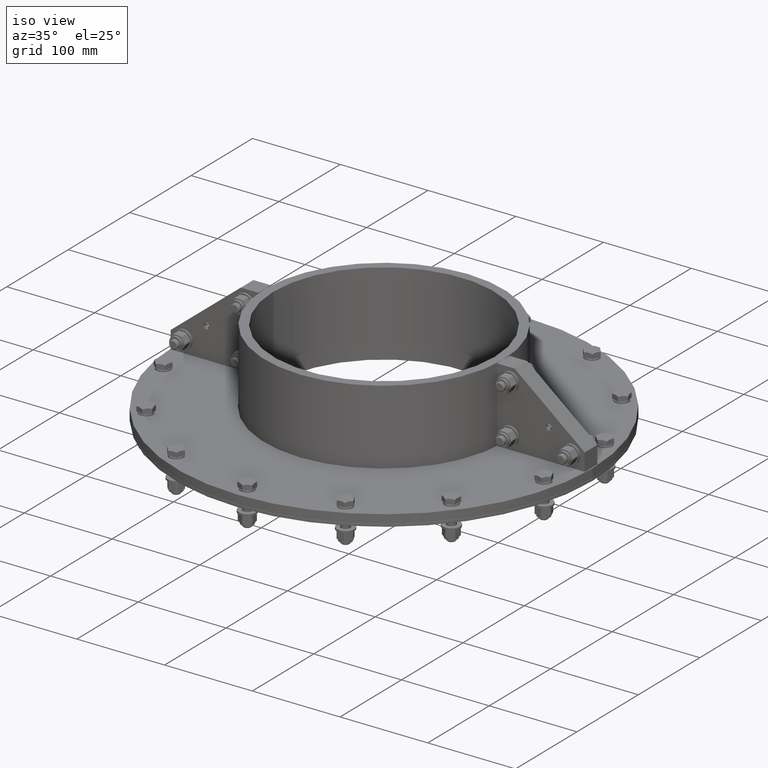
[diagram: clean part render]
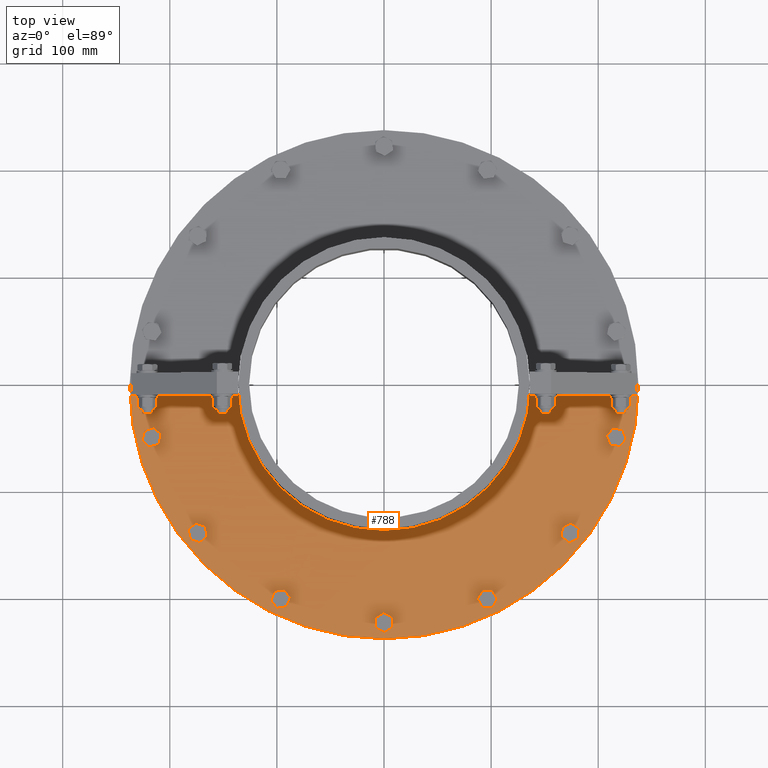
[diagram: tour spotlight — one face highlighted and labeled with its STEP entity id]
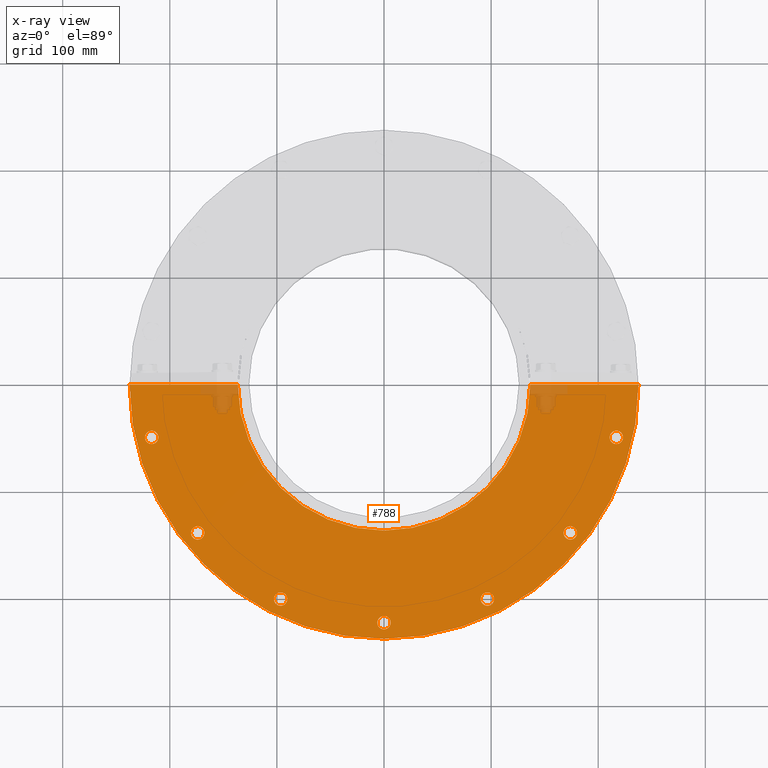
[diagram: x-ray of the same camera — body ghosted, this tour face saturated]
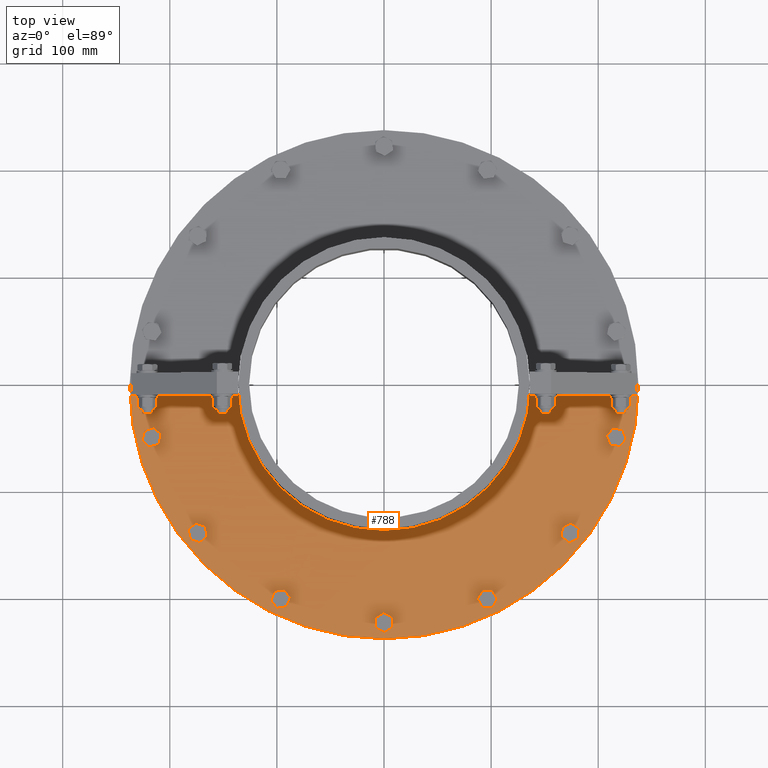
[diagram: tour spotlight — one face highlighted and labeled with its STEP entity id]
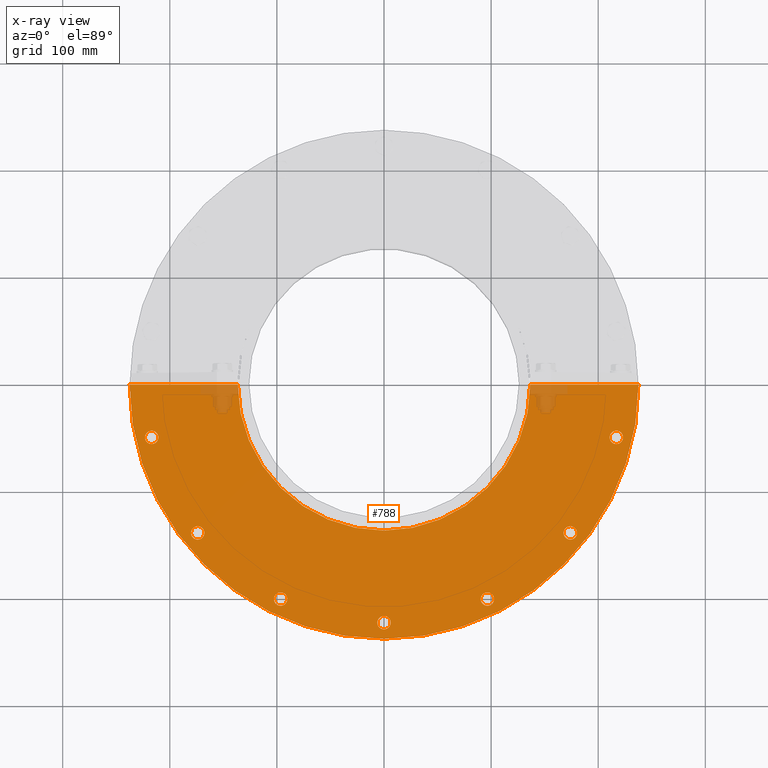
[diagram: x-ray of the same camera — body ghosted, this tour face saturated]
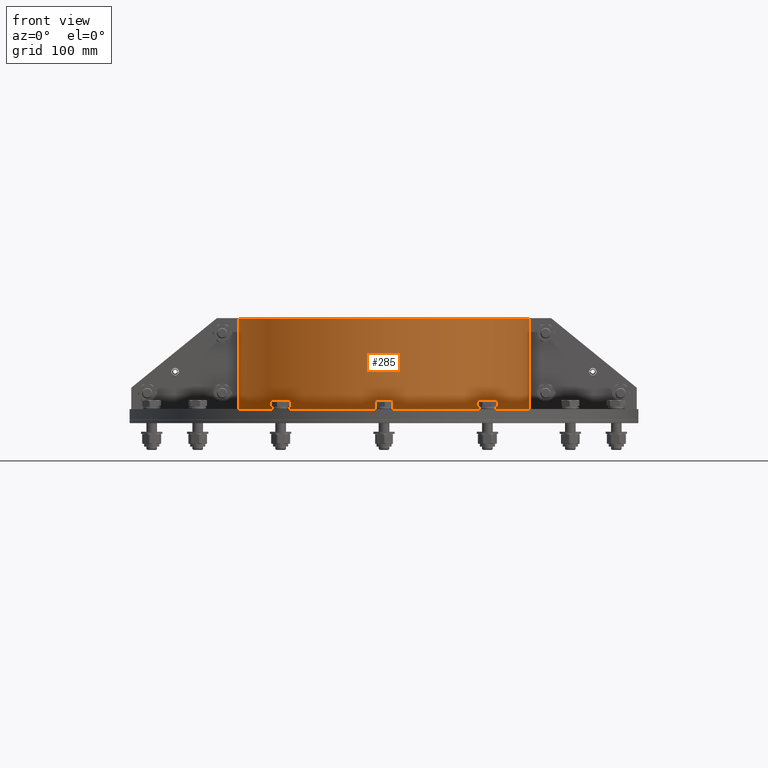
[diagram: tour spotlight — one face highlighted and labeled with its STEP entity id]
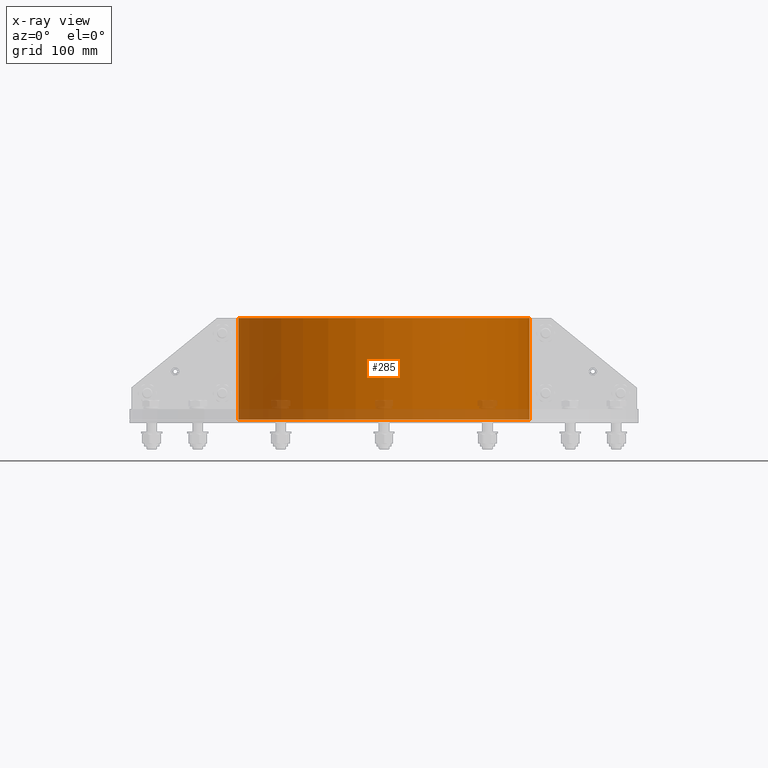
[diagram: x-ray of the same camera — body ghosted, this tour face saturated]
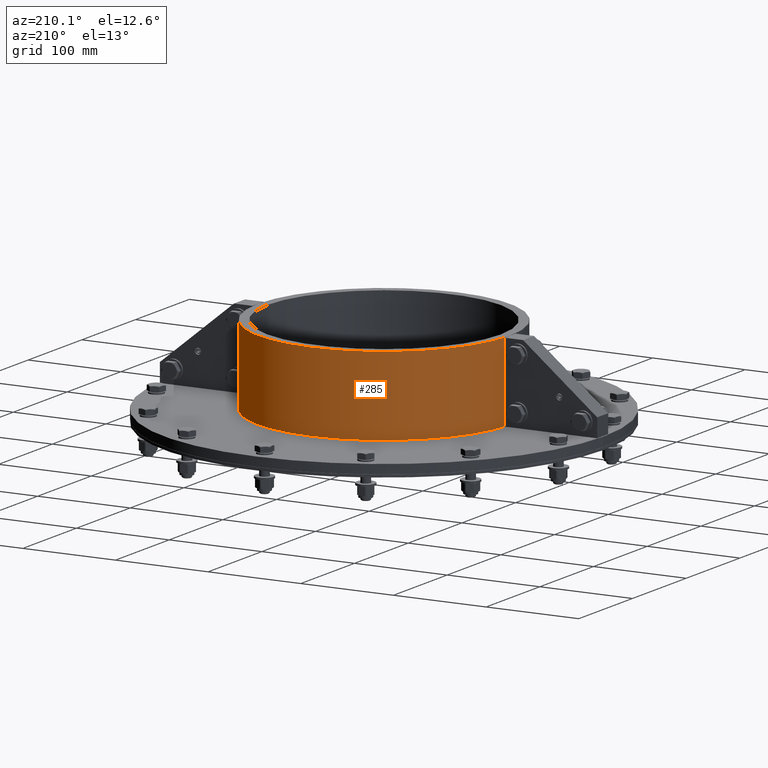
[diagram: tour spotlight — one face highlighted and labeled with its STEP entity id]
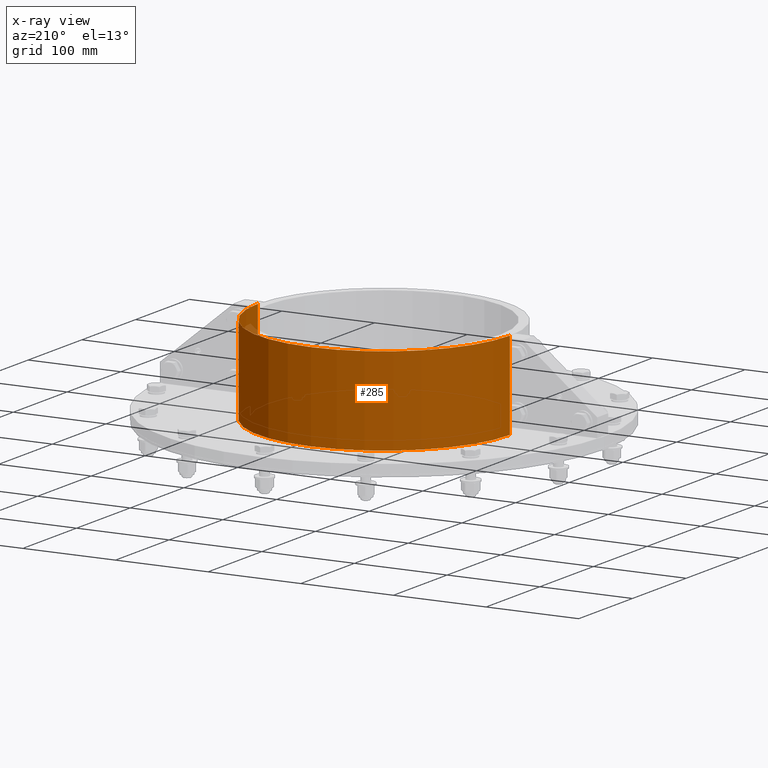
[diagram: x-ray of the same camera — body ghosted, this tour face saturated]
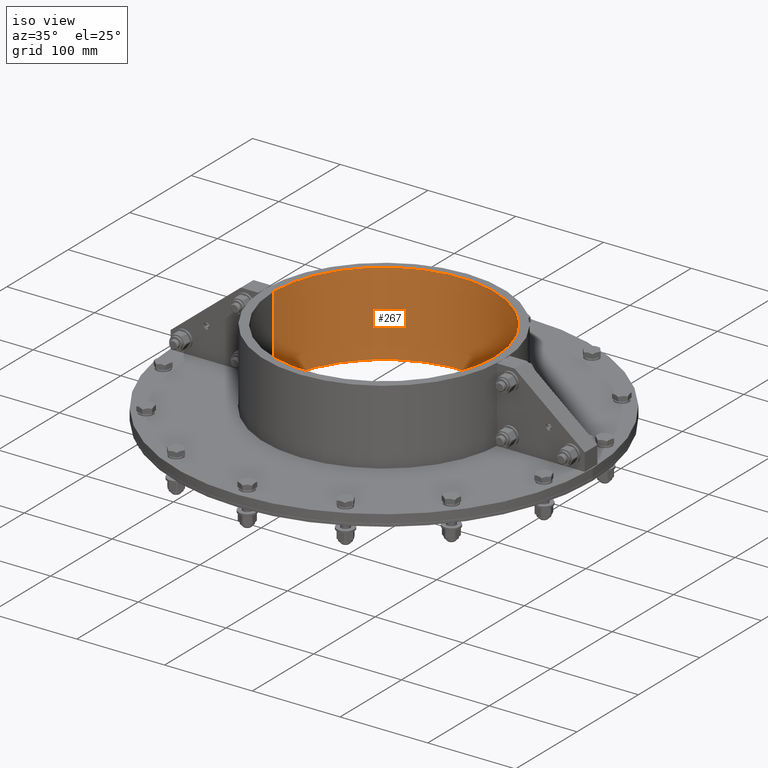
[diagram: tour spotlight — one face highlighted and labeled with its STEP entity id]
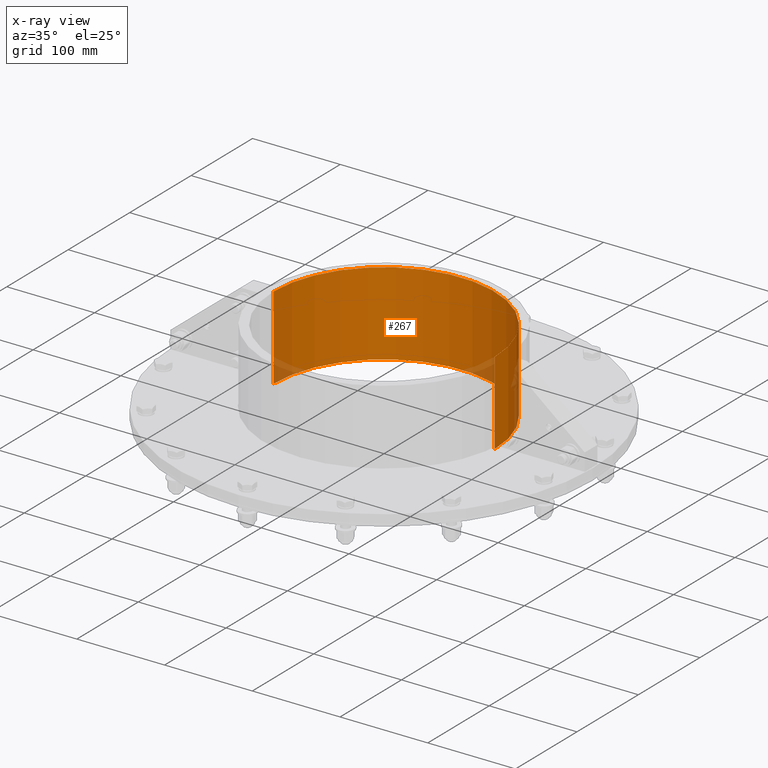
[diagram: x-ray of the same camera — body ghosted, this tour face saturated]
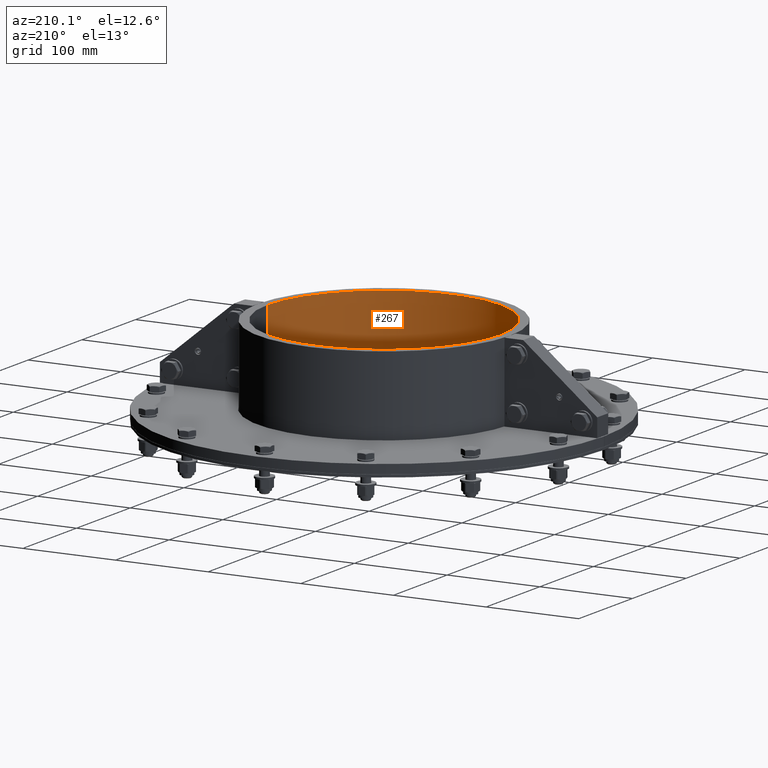
[diagram: tour spotlight — one face highlighted and labeled with its STEP entity id]
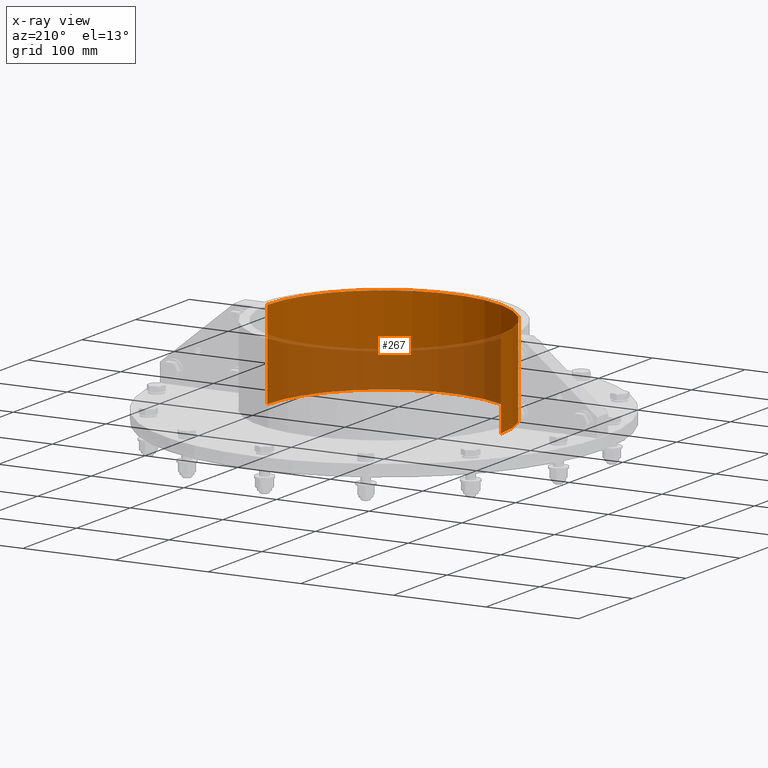
[diagram: x-ray of the same camera — body ghosted, this tour face saturated]
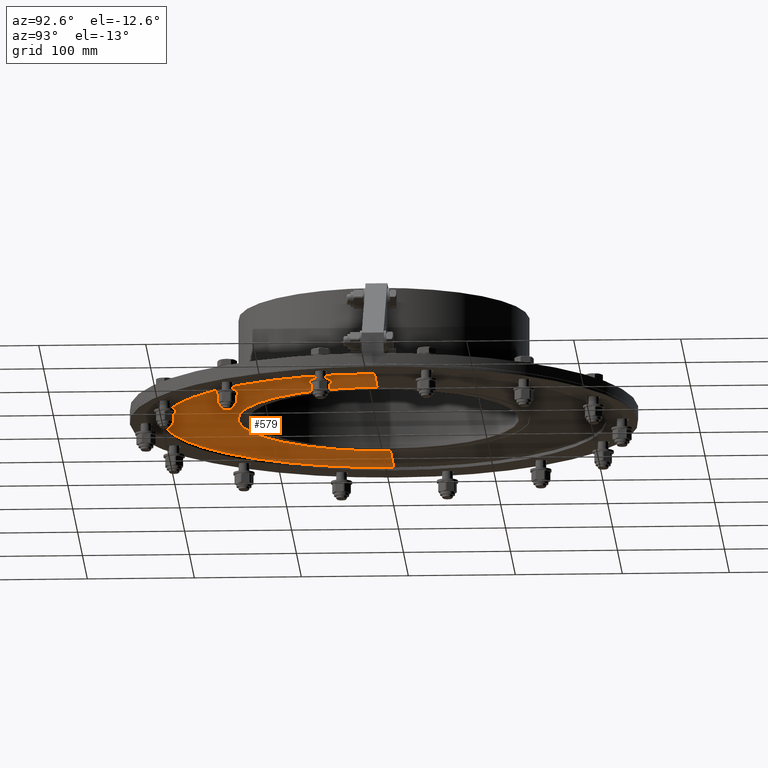
[diagram: tour spotlight — one face highlighted and labeled with its STEP entity id]
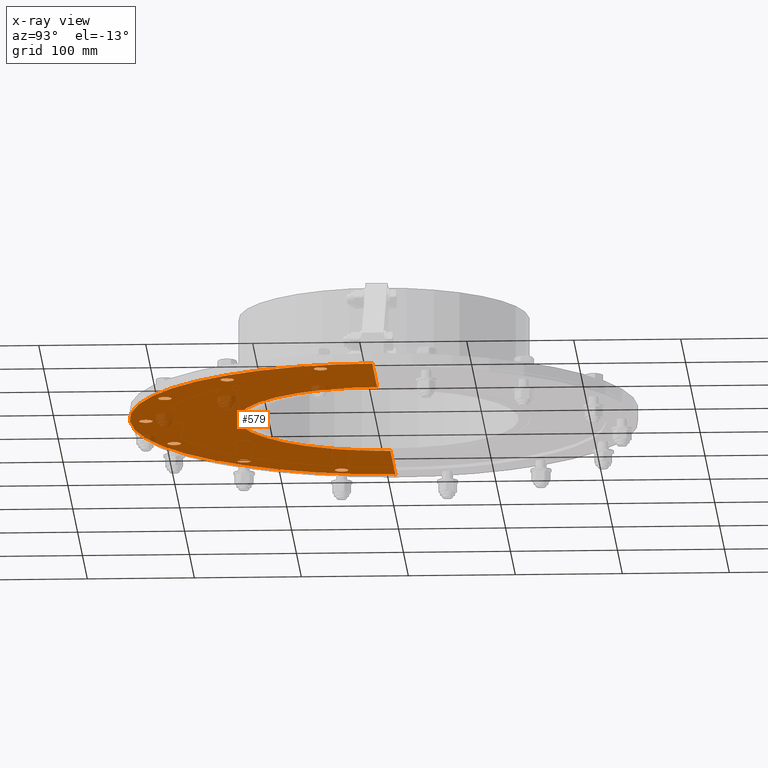
[diagram: x-ray of the same camera — body ghosted, this tour face saturated]
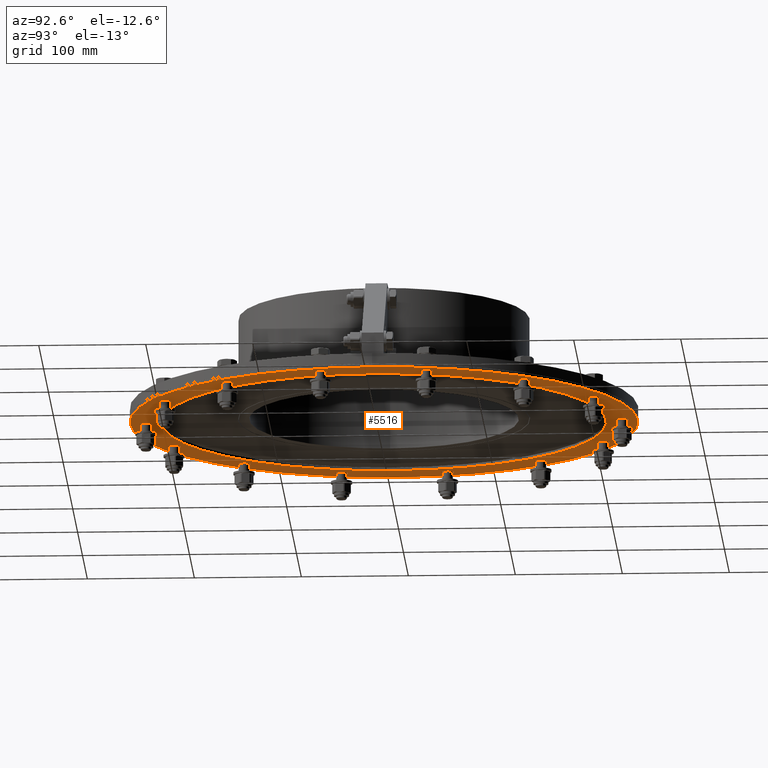
[diagram: tour spotlight — one face highlighted and labeled with its STEP entity id]
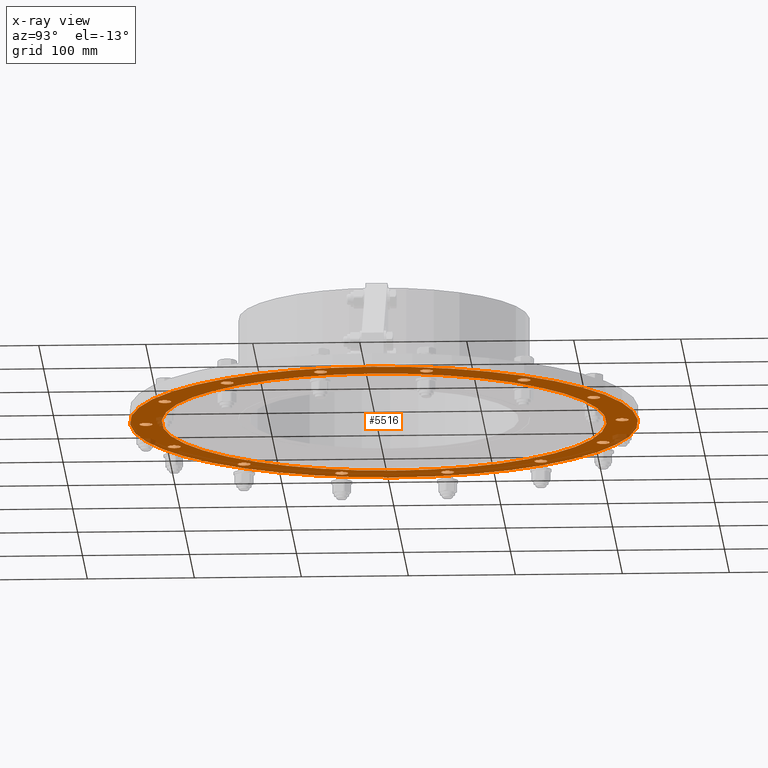
[diagram: x-ray of the same camera — body ghosted, this tour face saturated]
A machine part: a face-by-face anatomy tour. The part has 1926 B-rep faces; the first image is the clean iso view, then the 8 largest visible faces are spotlighted one at a time (largest first), each with its STEP entity span.

Face 1 — top view, entity #788. An x-ray twin of the same camera follows (body ghosted, this face saturated) — the face is partly hidden behind the body. In plain terms, the highlighted planar face has unit normal (0, 0, -1).
Definition (entity closure, byte-faithful):
#404=CARTESIAN_POINT('',(237.49991578945873,0.2,10.0));
#405=VERTEX_POINT('',#404);
#414=CARTESIAN_POINT('',(136.49985347977486,0.2,10.0));
#415=VERTEX_POINT('',#414);
#416=CARTESIAN_POINT('',(136.49985347977486,0.2,10.0));
#417=DIRECTION('',(1.0,0.0,0.0));
#418=VECTOR('',#417,101.00006230968387);
#419=LINE('',#416,#418);
#420=EDGE_CURVE('',#415,#405,#419,.T.);
#446=CARTESIAN_POINT('',(-237.49991578945873,0.2,10.0));
#447=VERTEX_POINT('',#446);
#462=CARTESIAN_POINT('',(-136.49985347977486,0.2,10.0));
#463=VERTEX_POINT('',#462);
#470=CARTESIAN_POINT('',(-237.49991578945873,0.2,10.0));
#471=DIRECTION('',(1.0,0.0,0.0));
#472=VECTOR('',#471,101.00006230968387);
#473=LINE('',#470,#472);
#474=EDGE_CURVE('',#447,#463,#473,.T.);
#588=CARTESIAN_POINT('',(0.0,0.0,10.0));
#589=DIRECTION('',(0.0,0.0,-1.0));
#590=DIRECTION('',(-1.0,0.0,0.0));
#591=AXIS2_PLACEMENT_3D('',#588,#589,#590);
#592=CIRCLE('',#591,136.5);
#593=EDGE_CURVE('',#463,#415,#592,.T.);
#606=CARTESIAN_POINT('',(5.631055424390112,219.78822663051531,10.0));
#607=VERTEX_POINT('',#606);
#608=CARTESIAN_POINT('',(-3.552714E-014,222.50000000000003,10.0));
#609=DIRECTION('',(0.0,0.0,-1.0));
#610=DIRECTION('',(0.900968867902419,-0.433883739117558,0.0));
#611=AXIS2_PLACEMENT_3D('',#608,#609,#610);
#612=CIRCLE('',#611,6.25);
#613=EDGE_CURVE('',#607,#607,#612,.T.);
#626=CARTESIAN_POINT('',(100.43594321527378,195.57912634286313,10.0));
#627=VERTEX_POINT('',#626);
#628=CARTESIAN_POINT('',(96.539131953656735,200.46557310828831,10.0));
#629=DIRECTION('',(0.0,0.0,-1.0));
#630=DIRECTION('',(0.623489801858733,-0.78183148246803,0.0));
#631=AXIS2_PLACEMENT_3D('',#628,#629,#630);
#632=CIRCLE('',#631,6.250000000000001);
#633=EDGE_CURVE('',#627,#627,#632,.T.);
#646=CARTESIAN_POINT('',(175.3482606863636,132.63318146243185,10.0));
#647=VERTEX_POINT('',#646);
#648=CARTESIAN_POINT('',(173.95750484913665,138.72648091356825,10.0));
#649=DIRECTION('',(0.0,0.0,-1.0));
#650=DIRECTION('',(0.222520933956314,-0.974927912181824,0.0));
#651=AXIS2_PLACEMENT_3D('',#648,#649,#650);
#652=CIRCLE('',#651,6.25);
#653=EDGE_CURVE('',#647,#647,#652,.T.);
#666=CARTESIAN_POINT('',(215.53070462322887,43.417608354143589,10.0));
#667=VERTEX_POINT('',#666);
#668=CARTESIAN_POINT('',(216.92146046045579,49.510907805279977,10.0));
#669=DIRECTION('',(0.0,0.0,-1.0));
#670=DIRECTION('',(-0.222520933956315,-0.974927912181824,0.0));
#671=AXIS2_PLACEMENT_3D('',#668,#669,#670);
#672=CIRCLE('',#671,6.249999999999999);
#673=EDGE_CURVE('',#667,#667,#672,.T.);
#686=CARTESIAN_POINT('',(-213.02464919883874,54.39735457070509,10.0));
#687=VERTEX_POINT('',#686);
#688=CARTESIAN_POINT('',(-216.92146046045582,49.510907805279913,10.0));
#689=DIRECTION('',(0.0,0.0,-1.0));
#690=DIRECTION('',(0.623489801858734,0.78183148246803,0.0));
#691=AXIS2_PLACEMENT_3D('',#688,#689,#690);
#692=CIRCLE('',#691,6.250000000000001);
#693=EDGE_CURVE('',#687,#687,#692,.T.);
#706=CARTESIAN_POINT('',(-168.32644942474658,141.43825428305294,10.0));
#707=VERTEX_POINT('',#706);
#708=CARTESIAN_POINT('',(-173.95750484913668,138.7264809135682,10.0));
#709=DIRECTION('',(0.0,0.0,-1.0));
#710=DIRECTION('',(0.900968867902419,0.433883739117558,0.0));
#711=AXIS2_PLACEMENT_3D('',#708,#709,#710);
#712=CIRCLE('',#711,6.250000000000001);
#713=EDGE_CURVE('',#707,#707,#712,.T.);
#726=CARTESIAN_POINT('',(-90.289131953656749,200.46557310828828,10.0));
#727=VERTEX_POINT('',#726);
#728=CARTESIAN_POINT('',(-96.539131953656749,200.46557310828828,10.0));
#729=DIRECTION('',(0.0,0.0,-1.0));
#730=DIRECTION('',(1.0,0.0,0.0));
#731=AXIS2_PLACEMENT_3D('',#728,#729,#730);
#732=CIRCLE('',#731,6.25);
#733=EDGE_CURVE('',#727,#727,#732,.T.);
#744=CARTESIAN_POINT('',(0.0,0.0,10.0));
#745=DIRECTION('',(0.0,0.0,-1.0));
#746=DIRECTION('',(-1.0,0.0,0.0));
#747=AXIS2_PLACEMENT_3D('',#744,#745,#746);
#748=CIRCLE('',#747,237.5);
#749=EDGE_CURVE('',#447,#405,#748,.T.);
#756=CARTESIAN_POINT('',(0.0,0.0,10.0));
#757=DIRECTION('',(0.0,0.0,-1.0));
#758=DIRECTION('',(-1.0,0.0,0.0));
#759=AXIS2_PLACEMENT_3D('',#756,#757,#758);
#760=PLANE('',#759);
#761=ORIENTED_EDGE('',*,*,#474,.T.);
#762=ORIENTED_EDGE('',*,*,#593,.T.);
#763=ORIENTED_EDGE('',*,*,#420,.T.);
#764=ORIENTED_EDGE('',*,*,#749,.F.);
#765=EDGE_LOOP('',(#761,#762,#763,#764));
#766=FACE_OUTER_BOUND('',#765,.T.);
#767=ORIENTED_EDGE('',*,*,#613,.T.);
#768=EDGE_LOOP('',(#767));
#769=FACE_BOUND('',#768,.T.);
#770=ORIENTED_EDGE('',*,*,#633,.T.);
#771=EDGE_LOOP('',(#770));
#772=FACE_BOUND('',#771,.T.);
#773=ORIENTED_EDGE('',*,*,#653,.T.);
#774=EDGE_LOOP('',(#773));
#775=FACE_BOUND('',#774,.T.);
#776=ORIENTED_EDGE('',*,*,#673,.T.);
#777=EDGE_LOOP('',(#776));
#778=FACE_BOUND('',#777,.T.);
#779=ORIENTED_EDGE('',*,*,#693,.T.);
#780=EDGE_LOOP('',(#779));
#781=FACE_BOUND('',#780,.T.);
#782=ORIENTED_EDGE('',*,*,#713,.T.);
#783=EDGE_LOOP('',(#782));
#784=FACE_BOUND('',#783,.T.);
#785=ORIENTED_EDGE('',*,*,#733,.T.);
#786=EDGE_LOOP('',(#785));
#787=FACE_BOUND('',#786,.T.);
#788=ADVANCED_FACE('',(#766,#769,#772,#775,#778,#781,#784,#787),#760,.F.);

Face 2 — top view, entity #788. An x-ray twin of the same camera follows (body ghosted, this face saturated) — the face is partly hidden behind the body. In plain terms, the highlighted planar face has unit normal (0, -0, -1).
Definition (entity closure, byte-faithful):
#404=CARTESIAN_POINT('',(237.49991578945873,0.2,10.0));
#405=VERTEX_POINT('',#404);
#414=CARTESIAN_POINT('',(136.49985347977486,0.2,10.0));
#415=VERTEX_POINT('',#414);
#416=CARTESIAN_POINT('',(136.49985347977486,0.2,10.0));
#417=DIRECTION('',(1.0,0.0,0.0));
#418=VECTOR('',#417,101.00006230968387);
#419=LINE('',#416,#418);
#420=EDGE_CURVE('',#415,#405,#419,.T.);
#446=CARTESIAN_POINT('',(-237.49991578945873,0.2,10.0));
#447=VERTEX_POINT('',#446);
#462=CARTESIAN_POINT('',(-136.49985347977486,0.2,10.0));
#463=VERTEX_POINT('',#462);
#470=CARTESIAN_POINT('',(-237.49991578945873,0.2,10.0));
#471=DIRECTION('',(1.0,0.0,0.0));
#472=VECTOR('',#471,101.00006230968387);
#473=LINE('',#470,#472);
#474=EDGE_CURVE('',#447,#463,#473,.T.);
#588=CARTESIAN_POINT('',(0.0,0.0,10.0));
#589=DIRECTION('',(0.0,0.0,-1.0));
#590=DIRECTION('',(-1.0,0.0,0.0));
#591=AXIS2_PLACEMENT_3D('',#588,#589,#590);
#592=CIRCLE('',#591,136.5);
#593=EDGE_CURVE('',#463,#415,#592,.T.);
#606=CARTESIAN_POINT('',(5.631055424390112,219.78822663051531,10.0));
#607=VERTEX_POINT('',#606);
#608=CARTESIAN_POINT('',(-3.552714E-014,222.50000000000003,10.0));
#609=DIRECTION('',(0.0,0.0,-1.0));
#610=DIRECTION('',(0.900968867902419,-0.433883739117558,0.0));
#611=AXIS2_PLACEMENT_3D('',#608,#609,#610);
#612=CIRCLE('',#611,6.25);
#613=EDGE_CURVE('',#607,#607,#612,.T.);
#626=CARTESIAN_POINT('',(100.43594321527378,195.57912634286313,10.0));
#627=VERTEX_POINT('',#626);
#628=CARTESIAN_POINT('',(96.539131953656735,200.46557310828831,10.0));
#629=DIRECTION('',(0.0,0.0,-1.0));
#630=DIRECTION('',(0.623489801858733,-0.78183148246803,0.0));
#631=AXIS2_PLACEMENT_3D('',#628,#629,#630);
#632=CIRCLE('',#631,6.250000000000001);
#633=EDGE_CURVE('',#627,#627,#632,.T.);
#646=CARTESIAN_POINT('',(175.3482606863636,132.63318146243185,10.0));
#647=VERTEX_POINT('',#646);
#648=CARTESIAN_POINT('',(173.95750484913665,138.72648091356825,10.0));
#649=DIRECTION('',(0.0,0.0,-1.0));
#650=DIRECTION('',(0.222520933956314,-0.974927912181824,0.0));
#651=AXIS2_PLACEMENT_3D('',#648,#649,#650);
#652=CIRCLE('',#651,6.25);
#653=EDGE_CURVE('',#647,#647,#652,.T.);
#666=CARTESIAN_POINT('',(215.53070462322887,43.417608354143589,10.0));
#667=VERTEX_POINT('',#666);
#668=CARTESIAN_POINT('',(216.92146046045579,49.510907805279977,10.0));
#669=DIRECTION('',(0.0,0.0,-1.0));
#670=DIRECTION('',(-0.222520933956315,-0.974927912181824,0.0));
#671=AXIS2_PLACEMENT_3D('',#668,#669,#670);
#672=CIRCLE('',#671,6.249999999999999);
#673=EDGE_CURVE('',#667,#667,#672,.T.);
#686=CARTESIAN_POINT('',(-213.02464919883874,54.39735457070509,10.0));
#687=VERTEX_POINT('',#686);
#688=CARTESIAN_POINT('',(-216.92146046045582,49.510907805279913,10.0));
#689=DIRECTION('',(0.0,0.0,-1.0));
#690=DIRECTION('',(0.623489801858734,0.78183148246803,0.0));
#691=AXIS2_PLACEMENT_3D('',#688,#689,#690);
#692=CIRCLE('',#691,6.250000000000001);
#693=EDGE_CURVE('',#687,#687,#692,.T.);
#706=CARTESIAN_POINT('',(-168.32644942474658,141.43825428305294,10.0));
#707=VERTEX_POINT('',#706);
#708=CARTESIAN_POINT('',(-173.95750484913668,138.7264809135682,10.0));
#709=DIRECTION('',(0.0,0.0,-1.0));
#710=DIRECTION('',(0.900968867902419,0.433883739117558,0.0));
#711=AXIS2_PLACEMENT_3D('',#708,#709,#710);
#712=CIRCLE('',#711,6.250000000000001);
#713=EDGE_CURVE('',#707,#707,#712,.T.);
#726=CARTESIAN_POINT('',(-90.289131953656749,200.46557310828828,10.0));
#727=VERTEX_POINT('',#726);
#728=CARTESIAN_POINT('',(-96.539131953656749,200.46557310828828,10.0));
#729=DIRECTION('',(0.0,0.0,-1.0));
#730=DIRECTION('',(1.0,0.0,0.0));
#731=AXIS2_PLACEMENT_3D('',#728,#729,#730);
#732=CIRCLE('',#731,6.25);
#733=EDGE_CURVE('',#727,#727,#732,.T.);
#744=CARTESIAN_POINT('',(0.0,0.0,10.0));
#745=DIRECTION('',(0.0,0.0,-1.0));
#746=DIRECTION('',(-1.0,0.0,0.0));
#747=AXIS2_PLACEMENT_3D('',#744,#745,#746);
#748=CIRCLE('',#747,237.5);
#749=EDGE_CURVE('',#447,#405,#748,.T.);
#756=CARTESIAN_POINT('',(0.0,0.0,10.0));
#757=DIRECTION('',(0.0,0.0,-1.0));
#758=DIRECTION('',(-1.0,0.0,0.0));
#759=AXIS2_PLACEMENT_3D('',#756,#757,#758);
#760=PLANE('',#759);
#761=ORIENTED_EDGE('',*,*,#474,.T.);
#762=ORIENTED_EDGE('',*,*,#593,.T.);
#763=ORIENTED_EDGE('',*,*,#420,.T.);
#764=ORIENTED_EDGE('',*,*,#749,.F.);
#765=EDGE_LOOP('',(#761,#762,#763,#764));
#766=FACE_OUTER_BOUND('',#765,.T.);
#767=ORIENTED_EDGE('',*,*,#613,.T.);
#768=EDGE_LOOP('',(#767));
#769=FACE_BOUND('',#768,.T.);
#770=ORIENTED_EDGE('',*,*,#633,.T.);
#771=EDGE_LOOP('',(#770));
#772=FACE_BOUND('',#771,.T.);
#773=ORIENTED_EDGE('',*,*,#653,.T.);
#774=EDGE_LOOP('',(#773));
#775=FACE_BOUND('',#774,.T.);
#776=ORIENTED_EDGE('',*,*,#673,.T.);
#777=EDGE_LOOP('',(#776));
#778=FACE_BOUND('',#777,.T.);
#779=ORIENTED_EDGE('',*,*,#693,.T.);
#780=EDGE_LOOP('',(#779));
#781=FACE_BOUND('',#780,.T.);
#782=ORIENTED_EDGE('',*,*,#713,.T.);
#783=EDGE_LOOP('',(#782));
#784=FACE_BOUND('',#783,.T.);
#785=ORIENTED_EDGE('',*,*,#733,.T.);
#786=EDGE_LOOP('',(#785));
#787=FACE_BOUND('',#786,.T.);
#788=ADVANCED_FACE('',(#766,#769,#772,#775,#778,#781,#784,#787),#760,.F.);

Face 3 — front view, entity #285. An x-ray twin of the same camera follows (body ghosted, this face saturated) — the face is partly hidden behind the body. In plain terms, the highlighted cylindrical surface (partial cylindrical patch) has radius 136 mm, axis along (0, 0, 1).
Definition (entity closure, byte-faithful):
#151=CARTESIAN_POINT('',(135.99985294109698,0.2,95.0));
#152=VERTEX_POINT('',#151);
#153=CARTESIAN_POINT('',(135.99985294109698,0.2,0.0));
#154=VERTEX_POINT('',#153);
#155=CARTESIAN_POINT('',(135.99985294109698,0.2,95.0));
#156=DIRECTION('',(0.0,0.0,-1.0));
#157=VECTOR('',#156,95.0);
#158=LINE('',#155,#157);
#159=EDGE_CURVE('',#152,#154,#158,.T.);
#191=CARTESIAN_POINT('',(-135.99985294109698,0.2,0.0));
#192=VERTEX_POINT('',#191);
#193=CARTESIAN_POINT('',(-135.99985294109698,0.2,95.0));
#194=VERTEX_POINT('',#193);
#195=CARTESIAN_POINT('',(-135.99985294109698,0.2,0.0));
#196=DIRECTION('',(0.0,0.0,1.0));
#197=VECTOR('',#196,95.0);
#198=LINE('',#195,#197);
#199=EDGE_CURVE('',#192,#194,#198,.T.);
#232=CARTESIAN_POINT('',(0.0,0.0,0.0));
#233=DIRECTION('',(0.0,0.0,-1.0));
#234=DIRECTION('',(-1.0,0.0,0.0));
#235=AXIS2_PLACEMENT_3D('',#232,#233,#234);
#236=CIRCLE('',#235,136.0);
#237=EDGE_CURVE('',#192,#154,#236,.T.);
#268=CARTESIAN_POINT('',(0.0,0.0,0.0));
#269=DIRECTION('',(0.0,0.0,1.0));
#270=DIRECTION('',(-1.0,0.0,0.0));
#271=AXIS2_PLACEMENT_3D('',#268,#269,#270);
#272=CYLINDRICAL_SURFACE('',#271,136.0);
#273=ORIENTED_EDGE('',*,*,#199,.T.);
#274=CARTESIAN_POINT('',(0.0,0.0,95.0));
#275=DIRECTION('',(0.0,0.0,-1.0));
#276=DIRECTION('',(-1.0,0.0,0.0));
#277=AXIS2_PLACEMENT_3D('',#274,#275,#276);
#278=CIRCLE('',#277,136.0);
#279=EDGE_CURVE('',#194,#152,#278,.T.);
#280=ORIENTED_EDGE('',*,*,#279,.T.);
#281=ORIENTED_EDGE('',*,*,#159,.T.);
#282=ORIENTED_EDGE('',*,*,#237,.F.);
#283=EDGE_LOOP('',(#273,#280,#281,#282));
#284=FACE_OUTER_BOUND('',#283,.T.);
#285=ADVANCED_FACE('',(#284),#272,.T.);

Face 4 — auxiliary view, entity #285. An x-ray twin of the same camera follows (body ghosted, this face saturated) — the face is partly hidden behind the body. In plain terms, the highlighted cylindrical surface (partial cylindrical patch) has radius 136 mm, axis along (-0, -0, 1).
Definition (entity closure, byte-faithful):
#151=CARTESIAN_POINT('',(135.99985294109698,0.2,95.0));
#152=VERTEX_POINT('',#151);
#153=CARTESIAN_POINT('',(135.99985294109698,0.2,0.0));
#154=VERTEX_POINT('',#153);
#155=CARTESIAN_POINT('',(135.99985294109698,0.2,95.0));
#156=DIRECTION('',(0.0,0.0,-1.0));
#157=VECTOR('',#156,95.0);
#158=LINE('',#155,#157);
#159=EDGE_CURVE('',#152,#154,#158,.T.);
#191=CARTESIAN_POINT('',(-135.99985294109698,0.2,0.0));
#192=VERTEX_POINT('',#191);
#193=CARTESIAN_POINT('',(-135.99985294109698,0.2,95.0));
#194=VERTEX_POINT('',#193);
#195=CARTESIAN_POINT('',(-135.99985294109698,0.2,0.0));
#196=DIRECTION('',(0.0,0.0,1.0));
#197=VECTOR('',#196,95.0);
#198=LINE('',#195,#197);
#199=EDGE_CURVE('',#192,#194,#198,.T.);
#232=CARTESIAN_POINT('',(0.0,0.0,0.0));
#233=DIRECTION('',(0.0,0.0,-1.0));
#234=DIRECTION('',(-1.0,0.0,0.0));
#235=AXIS2_PLACEMENT_3D('',#232,#233,#234);
#236=CIRCLE('',#235,136.0);
#237=EDGE_CURVE('',#192,#154,#236,.T.);
#268=CARTESIAN_POINT('',(0.0,0.0,0.0));
#269=DIRECTION('',(0.0,0.0,1.0));
#270=DIRECTION('',(-1.0,0.0,0.0));
#271=AXIS2_PLACEMENT_3D('',#268,#269,#270);
#272=CYLINDRICAL_SURFACE('',#271,136.0);
#273=ORIENTED_EDGE('',*,*,#199,.T.);
#274=CARTESIAN_POINT('',(0.0,0.0,95.0));
#275=DIRECTION('',(0.0,0.0,-1.0));
#276=DIRECTION('',(-1.0,0.0,0.0));
#277=AXIS2_PLACEMENT_3D('',#274,#275,#276);
#278=CIRCLE('',#277,136.0);
#279=EDGE_CURVE('',#194,#152,#278,.T.);
#280=ORIENTED_EDGE('',*,*,#279,.T.);
#281=ORIENTED_EDGE('',*,*,#159,.T.);
#282=ORIENTED_EDGE('',*,*,#237,.F.);
#283=EDGE_LOOP('',(#273,#280,#281,#282));
#284=FACE_OUTER_BOUND('',#283,.T.);
#285=ADVANCED_FACE('',(#284),#272,.T.);

Face 5 — iso view, entity #267. An x-ray twin of the same camera follows (body ghosted, this face saturated) — the face is partly hidden behind the body. In plain terms, the highlighted cylindrical surface (partial cylindrical patch) has radius 126 mm, axis along (-0, -0, 1).
Definition (entity closure, byte-faithful):
#161=CARTESIAN_POINT('',(125.9998412697413,0.2,95.0));
#162=VERTEX_POINT('',#161);
#169=CARTESIAN_POINT('',(125.9998412697413,0.2,0.0));
#170=VERTEX_POINT('',#169);
#171=CARTESIAN_POINT('',(125.9998412697413,0.2,0.0));
#172=DIRECTION('',(0.0,0.0,1.0));
#173=VECTOR('',#172,95.0);
#174=LINE('',#171,#173);
#175=EDGE_CURVE('',#170,#162,#174,.T.);
#201=CARTESIAN_POINT('',(-125.9998412697413,0.2,0.0));
#202=VERTEX_POINT('',#201);
#209=CARTESIAN_POINT('',(-125.9998412697413,0.2,95.0));
#210=VERTEX_POINT('',#209);
#211=CARTESIAN_POINT('',(-125.9998412697413,0.2,95.0));
#212=DIRECTION('',(0.0,0.0,-1.0));
#213=VECTOR('',#212,95.0);
#214=LINE('',#211,#213);
#215=EDGE_CURVE('',#210,#202,#214,.T.);
#240=CARTESIAN_POINT('',(0.0,0.0,0.0));
#241=DIRECTION('',(0.0,0.0,1.0));
#242=DIRECTION('',(-1.0,0.0,0.0));
#243=AXIS2_PLACEMENT_3D('',#240,#241,#242);
#244=CIRCLE('',#243,126.00000000000001);
#245=EDGE_CURVE('',#170,#202,#244,.T.);
#250=CARTESIAN_POINT('',(0.0,0.0,0.0));
#251=DIRECTION('',(0.0,0.0,1.0));
#252=DIRECTION('',(-1.0,0.0,0.0));
#253=AXIS2_PLACEMENT_3D('',#250,#251,#252);
#254=CYLINDRICAL_SURFACE('',#253,126.00000000000001);
#255=ORIENTED_EDGE('',*,*,#215,.T.);
#256=ORIENTED_EDGE('',*,*,#245,.F.);
#257=ORIENTED_EDGE('',*,*,#175,.T.);
#258=CARTESIAN_POINT('',(0.0,0.0,95.0));
#259=DIRECTION('',(0.0,0.0,-1.0));
#260=DIRECTION('',(-1.0,0.0,0.0));
#261=AXIS2_PLACEMENT_3D('',#258,#259,#260);
#262=CIRCLE('',#261,126.00000000000001);
#263=EDGE_CURVE('',#210,#162,#262,.T.);
#264=ORIENTED_EDGE('',*,*,#263,.F.);
#265=EDGE_LOOP('',(#255,#256,#257,#264));
#266=FACE_OUTER_BOUND('',#265,.T.);
#267=ADVANCED_FACE('',(#266),#254,.F.);

Face 6 — auxiliary view, entity #267. An x-ray twin of the same camera follows (body ghosted, this face saturated) — the face is partly hidden behind the body. In plain terms, the highlighted cylindrical surface (partial cylindrical patch) has radius 126 mm, axis along (0, 0, 1).
Definition (entity closure, byte-faithful):
#161=CARTESIAN_POINT('',(125.9998412697413,0.2,95.0));
#162=VERTEX_POINT('',#161);
#169=CARTESIAN_POINT('',(125.9998412697413,0.2,0.0));
#170=VERTEX_POINT('',#169);
#171=CARTESIAN_POINT('',(125.9998412697413,0.2,0.0));
#172=DIRECTION('',(0.0,0.0,1.0));
#173=VECTOR('',#172,95.0);
#174=LINE('',#171,#173);
#175=EDGE_CURVE('',#170,#162,#174,.T.);
#201=CARTESIAN_POINT('',(-125.9998412697413,0.2,0.0));
#202=VERTEX_POINT('',#201);
#209=CARTESIAN_POINT('',(-125.9998412697413,0.2,95.0));
#210=VERTEX_POINT('',#209);
#211=CARTESIAN_POINT('',(-125.9998412697413,0.2,95.0));
#212=DIRECTION('',(0.0,0.0,-1.0));
#213=VECTOR('',#212,95.0);
#214=LINE('',#211,#213);
#215=EDGE_CURVE('',#210,#202,#214,.T.);
#240=CARTESIAN_POINT('',(0.0,0.0,0.0));
#241=DIRECTION('',(0.0,0.0,1.0));
#242=DIRECTION('',(-1.0,0.0,0.0));
#243=AXIS2_PLACEMENT_3D('',#240,#241,#242);
#244=CIRCLE('',#243,126.00000000000001);
#245=EDGE_CURVE('',#170,#202,#244,.T.);
#250=CARTESIAN_POINT('',(0.0,0.0,0.0));
#251=DIRECTION('',(0.0,0.0,1.0));
#252=DIRECTION('',(-1.0,0.0,0.0));
#253=AXIS2_PLACEMENT_3D('',#250,#251,#252);
#254=CYLINDRICAL_SURFACE('',#253,126.00000000000001);
#255=ORIENTED_EDGE('',*,*,#215,.T.);
#256=ORIENTED_EDGE('',*,*,#245,.F.);
#257=ORIENTED_EDGE('',*,*,#175,.T.);
#258=CARTESIAN_POINT('',(0.0,0.0,95.0));
#259=DIRECTION('',(0.0,0.0,-1.0));
#260=DIRECTION('',(-1.0,0.0,0.0));
#261=AXIS2_PLACEMENT_3D('',#258,#259,#260);
#262=CIRCLE('',#261,126.00000000000001);
#263=EDGE_CURVE('',#210,#162,#262,.T.);
#264=ORIENTED_EDGE('',*,*,#263,.F.);
#265=EDGE_LOOP('',(#255,#256,#257,#264));
#266=FACE_OUTER_BOUND('',#265,.T.);
#267=ADVANCED_FACE('',(#266),#254,.F.);

Face 7 — auxiliary view, entity #579. An x-ray twin of the same camera follows (body ghosted, this face saturated) — the face is partly hidden behind the body. In plain terms, the highlighted planar face has unit normal (0, -0, -1).
Definition (entity closure, byte-faithful):
#406=CARTESIAN_POINT('',(237.49991578945873,0.2,0.0));
#407=VERTEX_POINT('',#406);
#422=CARTESIAN_POINT('',(136.49985347977486,0.2,0.0));
#423=VERTEX_POINT('',#422);
#430=CARTESIAN_POINT('',(237.49991578945873,0.2,0.0));
#431=DIRECTION('',(-1.0,0.0,0.0));
#432=VECTOR('',#431,101.00006230968387);
#433=LINE('',#430,#432);
#434=EDGE_CURVE('',#407,#423,#433,.T.);
#444=CARTESIAN_POINT('',(-237.49991578945873,0.2,0.0));
#445=VERTEX_POINT('',#444);
#454=CARTESIAN_POINT('',(-136.49985347977486,0.2,0.0));
#455=VERTEX_POINT('',#454);
#456=CARTESIAN_POINT('',(-136.49985347977486,0.2,0.0));
#457=DIRECTION('',(-1.0,0.0,0.0));
#458=VECTOR('',#457,101.00006230968387);
#459=LINE('',#456,#458);
#460=EDGE_CURVE('',#455,#445,#459,.T.);
#479=CARTESIAN_POINT('',(0.0,0.0,0.0));
#480=DIRECTION('',(0.0,0.0,-1.0));
#481=DIRECTION('',(-1.0,0.0,0.0));
#482=AXIS2_PLACEMENT_3D('',#479,#480,#481);
#483=PLANE('',#482);
#484=ORIENTED_EDGE('',*,*,#460,.T.);
#485=CARTESIAN_POINT('',(0.0,0.0,0.0));
#486=DIRECTION('',(0.0,0.0,-1.0));
#487=DIRECTION('',(-1.0,0.0,0.0));
#488=AXIS2_PLACEMENT_3D('',#485,#486,#487);
#489=CIRCLE('',#488,237.5);
#490=EDGE_CURVE('',#445,#407,#489,.T.);
#491=ORIENTED_EDGE('',*,*,#490,.T.);
#492=ORIENTED_EDGE('',*,*,#434,.T.);
#493=CARTESIAN_POINT('',(0.0,0.0,0.0));
#494=DIRECTION('',(0.0,0.0,1.0));
#495=DIRECTION('',(-1.0,0.0,0.0));
#496=AXIS2_PLACEMENT_3D('',#493,#494,#495);
#497=CIRCLE('',#496,136.5);
#498=EDGE_CURVE('',#423,#455,#497,.T.);
#499=ORIENTED_EDGE('',*,*,#498,.T.);
#500=EDGE_LOOP('',(#484,#491,#492,#499));
#501=FACE_OUTER_BOUND('',#500,.T.);
#502=CARTESIAN_POINT('',(-102.78913195365675,200.46557310828828,0.0));
#503=VERTEX_POINT('',#502);
#504=CARTESIAN_POINT('',(-96.539131953656749,200.46557310828828,0.0));
#505=DIRECTION('',(0.0,0.0,1.0));
#506=DIRECTION('',(1.0,0.0,0.0));
#507=AXIS2_PLACEMENT_3D('',#504,#505,#506);
#508=CIRCLE('',#507,6.25);
#509=EDGE_CURVE('',#503,#503,#508,.T.);
#510=ORIENTED_EDGE('',*,*,#509,.T.);
#511=EDGE_LOOP('',(#510));
#512=FACE_BOUND('',#511,.T.);
#513=CARTESIAN_POINT('',(-179.58856027352681,136.01470754408345,0.0));
#514=VERTEX_POINT('',#513);
#515=CARTESIAN_POINT('',(-173.95750484913668,138.7264809135682,0.0));
#516=DIRECTION('',(0.0,0.0,1.0));
#517=DIRECTION('',(0.900968867902419,0.433883739117558,0.0));
#518=AXIS2_PLACEMENT_3D('',#515,#516,#517);
#519=CIRCLE('',#518,6.250000000000001);
#520=EDGE_CURVE('',#514,#514,#519,.T.);
#521=ORIENTED_EDGE('',*,*,#520,.T.);
#522=EDGE_LOOP('',(#521));
#523=FACE_BOUND('',#522,.T.);
#524=CARTESIAN_POINT('',(-220.81827172207289,44.624461039854722,0.0));
#525=VERTEX_POINT('',#524);
#526=CARTESIAN_POINT('',(-216.92146046045582,49.510907805279913,0.0));
#527=DIRECTION('',(0.0,0.0,1.0));
#528=DIRECTION('',(0.623489801858734,0.78183148246803,0.0));
#529=AXIS2_PLACEMENT_3D('',#526,#527,#528);
#530=CIRCLE('',#529,6.250000000000001);
#531=EDGE_CURVE('',#525,#525,#530,.T.);
#532=ORIENTED_EDGE('',*,*,#531,.T.);
#533=EDGE_LOOP('',(#532));
#534=FACE_BOUND('',#533,.T.);
#535=CARTESIAN_POINT('',(218.3122162976828,55.604207256416387,0.0));
#536=VERTEX_POINT('',#535);
#537=CARTESIAN_POINT('',(216.92146046045579,49.510907805279977,0.0));
#538=DIRECTION('',(0.0,0.0,1.0));
#539=DIRECTION('',(-0.222520933956315,-0.974927912181824,0.0));
#540=AXIS2_PLACEMENT_3D('',#537,#538,#539);
#541=CIRCLE('',#540,6.249999999999999);
#542=EDGE_CURVE('',#536,#536,#541,.T.);
#543=ORIENTED_EDGE('',*,*,#542,.T.);
#544=EDGE_LOOP('',(#543));
#545=FACE_BOUND('',#544,.T.);
#546=CARTESIAN_POINT('',(172.56674901190968,144.81978036470463,0.0));
#547=VERTEX_POINT('',#546);
#548=CARTESIAN_POINT('',(173.95750484913665,138.72648091356825,0.0));
#549=DIRECTION('',(0.0,0.0,1.0));
#550=DIRECTION('',(0.222520933956314,-0.974927912181824,0.0));
#551=AXIS2_PLACEMENT_3D('',#548,#549,#550);
#552=CIRCLE('',#551,6.25);
#553=EDGE_CURVE('',#547,#547,#552,.T.);
#554=ORIENTED_EDGE('',*,*,#553,.T.);
#555=EDGE_LOOP('',(#554));
#556=FACE_BOUND('',#555,.T.);
#557=CARTESIAN_POINT('',(92.642320692039632,205.35201987371352,0.0));
#558=VERTEX_POINT('',#557);
#559=CARTESIAN_POINT('',(96.539131953656735,200.46557310828831,0.0));
#560=DIRECTION('',(0.0,0.0,1.0));
#561=DIRECTION('',(0.623489801858733,-0.78183148246803,0.0));
#562=AXIS2_PLACEMENT_3D('',#559,#560,#561);
#563=CIRCLE('',#562,6.250000000000001);
#564=EDGE_CURVE('',#558,#558,#563,.T.);
#565=ORIENTED_EDGE('',*,*,#564,.T.);
#566=EDGE_LOOP('',(#565));
#567=FACE_BOUND('',#566,.T.);
#568=CARTESIAN_POINT('',(-5.631055424390148,225.2117733694848,0.0));
#569=VERTEX_POINT('',#568);
#570=CARTESIAN_POINT('',(-3.552714E-014,222.50000000000003,0.0));
#571=DIRECTION('',(0.0,0.0,1.0));
#572=DIRECTION('',(0.900968867902419,-0.433883739117558,0.0));
#573=AXIS2_PLACEMENT_3D('',#570,#571,#572);
#574=CIRCLE('',#573,6.25);
#575=EDGE_CURVE('',#569,#569,#574,.T.);
#576=ORIENTED_EDGE('',*,*,#575,.T.);
#577=EDGE_LOOP('',(#576));
#578=FACE_BOUND('',#577,.T.);
#579=ADVANCED_FACE('',(#501,#512,#523,#534,#545,#556,#567,#578),#483,.T.);

Face 8 — auxiliary view, entity #5516. An x-ray twin of the same camera follows (body ghosted, this face saturated) — the face is partly hidden behind the body. In plain terms, the highlighted planar face has unit normal (0, 0, -1).
Definition (entity closure, byte-faithful):
#5311=CARTESIAN_POINT('',(237.25,2.905475E-014,0.0));
#5312=VERTEX_POINT('',#5311);
#5313=CARTESIAN_POINT('',(0.0,0.0,0.0));
#5314=DIRECTION('',(0.0,0.0,1.0));
#5315=DIRECTION('',(-1.0,0.0,0.0));
#5316=AXIS2_PLACEMENT_3D('',#5313,#5314,#5315);
#5317=CIRCLE('',#5316,237.25);
#5318=EDGE_CURVE('',#5312,#5312,#5317,.T.);
#5343=CARTESIAN_POINT('',(0.0,0.0,0.0));
#5344=DIRECTION('',(0.0,0.0,-1.0));
#5345=DIRECTION('',(-1.0,0.0,0.0));
#5346=AXIS2_PLACEMENT_3D('',#5343,#5344,#5345);
#5347=PLANE('',#5346);
#5348=ORIENTED_EDGE('',*,*,#5318,.F.);
#5349=EDGE_LOOP('',(#5348));
#5350=FACE_OUTER_BOUND('',#5349,.T.);
#5351=CARTESIAN_POINT('',(207.75,-2.544204E-014,0.0));
#5352=VERTEX_POINT('',#5351);
#5353=CARTESIAN_POINT('',(0.0,0.0,0.0));
#5354=DIRECTION('',(0.0,0.0,-1.0));
#5355=DIRECTION('',(-1.0,0.0,0.0));
#5356=AXIS2_PLACEMENT_3D('',#5353,#5354,#5355);
#5357=CIRCLE('',#5356,207.75);
#5358=EDGE_CURVE('',#5352,#5352,#5357,.T.);
#5359=ORIENTED_EDGE('',*,*,#5358,.F.);
#5360=EDGE_LOOP('',(#5359));
#5361=FACE_BOUND('',#5360,.T.);
#5362=CARTESIAN_POINT('',(-5.405813207414489,225.10330243470543,0.0));
#5363=VERTEX_POINT('',#5362);
#5364=CARTESIAN_POINT('',(1.776357E-014,222.5,0.0));
#5365=DIRECTION('',(0.0,0.0,1.0));
#5366=DIRECTION('',(0.900968867902419,-0.433883739117558,0.0));
#5367=AXIS2_PLACEMENT_3D('',#5364,#5365,#5366);
#5368=CIRCLE('',#5367,6.000000000000001);
#5369=EDGE_CURVE('',#5363,#5363,#5368,.T.);
#5370=ORIENTED_EDGE('',*,*,#5369,.T.);
#5371=EDGE_LOOP('',(#5370));
#5372=FACE_BOUND('',#5371,.T.);
#5373=CARTESIAN_POINT('',(92.798193142504331,205.1565620030965,0.0));
#5374=VERTEX_POINT('',#5373);
#5375=CARTESIAN_POINT('',(96.539131953656749,200.46557310828831,0.0));
#5376=DIRECTION('',(0.0,0.0,1.0));
#5377=DIRECTION('',(0.623489801858733,-0.78183148246803,0.0));
#5378=AXIS2_PLACEMENT_3D('',#5375,#5376,#5377);
#5379=CIRCLE('',#5378,6.000000000000001);
#5380=EDGE_CURVE('',#5374,#5374,#5379,.T.);
#5381=ORIENTED_EDGE('',*,*,#5380,.T.);
#5382=EDGE_LOOP('',(#5381));
#5383=FACE_BOUND('',#5382,.T.);
#5384=CARTESIAN_POINT('',(172.62237924539878,144.57604838665915,0.0));
#5385=VERTEX_POINT('',#5384);
#5386=CARTESIAN_POINT('',(173.95750484913668,138.72648091356822,0.0));
#5387=DIRECTION('',(0.0,0.0,1.0));
#5388=DIRECTION('',(0.222520933956314,-0.974927912181824,0.0));
#5389=AXIS2_PLACEMENT_3D('',#5386,#5387,#5388);
#5390=CIRCLE('',#5389,6.0);
#5391=EDGE_CURVE('',#5385,#5385,#5390,.T.);
#5392=ORIENTED_EDGE('',*,*,#5391,.T.);
#5393=EDGE_LOOP('',(#5392));
#5394=FACE_BOUND('',#5393,.T.);
#5395=CARTESIAN_POINT('',(218.25658606419367,55.360475278370878,0.0));
#5396=VERTEX_POINT('',#5395);
#5397=CARTESIAN_POINT('',(216.92146046045582,49.510907805279949,0.0));
#5398=DIRECTION('',(0.0,0.0,1.0));
#5399=DIRECTION('',(-0.222520933956315,-0.974927912181824,0.0));
#5400=AXIS2_PLACEMENT_3D('',#5397,#5398,#5399);
#5401=CIRCLE('',#5400,6.000000000000001);
#5402=EDGE_CURVE('',#5396,#5396,#5401,.T.);
#5403=ORIENTED_EDGE('',*,*,#5402,.T.);
#5404=EDGE_LOOP('',(#5403));
#5405=FACE_BOUND('',#5404,.T.);
#5406=CARTESIAN_POINT('',(220.66239927160819,-44.819918910471834,0.0));
#5407=VERTEX_POINT('',#5406);
#5408=CARTESIAN_POINT('',(216.92146046045579,-49.510907805279984,0.0));
#5409=DIRECTION('',(0.0,0.0,1.0));
#5410=DIRECTION('',(-0.623489801858734,-0.78183148246803,0.0));
#5411=AXIS2_PLACEMENT_3D('',#5408,#5409,#5410);
#5412=CIRCLE('',#5411,6.000000000000001);
#5413=EDGE_CURVE('',#5407,#5407,#5412,.T.);
#5414=ORIENTED_EDGE('',*,*,#5413,.T.);
#5415=EDGE_LOOP('',(#5414));
#5416=FACE_BOUND('',#5415,.T.);
#5417=CARTESIAN_POINT('',(179.36331805655115,-136.12317847886285,0.0));
#5418=VERTEX_POINT('',#5417);
#5419=CARTESIAN_POINT('',(173.95750484913665,-138.72648091356822,0.0));
#5420=DIRECTION('',(0.0,0.0,1.0));
#5421=DIRECTION('',(-0.900968867902419,-0.433883739117558,0.0));
#5422=AXIS2_PLACEMENT_3D('',#5419,#5420,#5421);
#5423=CIRCLE('',#5422,6.000000000000001);
#5424=EDGE_CURVE('',#5418,#5418,#5423,.T.);
#5425=ORIENTED_EDGE('',*,*,#5424,.T.);
#5426=EDGE_LOOP('',(#5425));
#5427=FACE_BOUND('',#5426,.T.);
#5428=CARTESIAN_POINT('',(102.53913195365668,-200.46557310828828,0.0));
#5429=VERTEX_POINT('',#5428);
#5430=CARTESIAN_POINT('',(96.539131953656693,-200.46557310828828,0.0));
#5431=DIRECTION('',(0.0,0.0,1.0));
#5432=DIRECTION('',(-1.0,0.0,0.0));
#5433=AXIS2_PLACEMENT_3D('',#5430,#5431,#5432);
#5434=CIRCLE('',#5433,6.000000000000001);
#5435=EDGE_CURVE('',#5429,#5429,#5434,.T.);
#5436=ORIENTED_EDGE('',*,*,#5435,.T.);
#5437=EDGE_LOOP('',(#5436));
#5438=FACE_BOUND('',#5437,.T.);
#5439=CARTESIAN_POINT('',(5.405813207414525,-225.10330243470543,0.0));
#5440=VERTEX_POINT('',#5439);
#5441=CARTESIAN_POINT('',(0.0,-222.50000000000006,0.0));
#5442=DIRECTION('',(0.0,0.0,1.0));
#5443=DIRECTION('',(-0.900968867902419,0.433883739117558,0.0));
#5444=AXIS2_PLACEMENT_3D('',#5441,#5442,#5443);
#5445=CIRCLE('',#5444,6.000000000000001);
#5446=EDGE_CURVE('',#5440,#5440,#5445,.T.);
#5447=ORIENTED_EDGE('',*,*,#5446,.T.);
#5448=EDGE_LOOP('',(#5447));
#5449=FACE_BOUND('',#5448,.T.);
#5450=CARTESIAN_POINT('',(-92.798193142504331,-205.1565620030965,0.0));
#5451=VERTEX_POINT('',#5450);
#5452=CARTESIAN_POINT('',(-96.539131953656749,-200.46557310828831,0.0));
#5453=DIRECTION('',(0.0,0.0,1.0));
#5454=DIRECTION('',(-0.623489801858733,0.78183148246803,0.0));
#5455=AXIS2_PLACEMENT_3D('',#5452,#5453,#5454);
#5456=CIRCLE('',#5455,6.000000000000001);
#5457=EDGE_CURVE('',#5451,#5451,#5456,.T.);
#5458=ORIENTED_EDGE('',*,*,#5457,.T.);
#5459=EDGE_LOOP('',(#5458));
#5460=FACE_BOUND('',#5459,.T.);
#5461=CARTESIAN_POINT('',(-172.62237924539878,-144.57604838665918,0.0));
#5462=VERTEX_POINT('',#5461);
#5463=CARTESIAN_POINT('',(-173.95750484913665,-138.72648091356825,0.0));
#5464=DIRECTION('',(0.0,0.0,1.0));
#5465=DIRECTION('',(-0.222520933956314,0.974927912181824,0.0));
#5466=AXIS2_PLACEMENT_3D('',#5463,#5464,#5465);
#5467=CIRCLE('',#5466,6.000000000000001);
#5468=EDGE_CURVE('',#5462,#5462,#5467,.T.);
#5469=ORIENTED_EDGE('',*,*,#5468,.T.);
#5470=EDGE_LOOP('',(#5469));
#5471=FACE_BOUND('',#5470,.T.);
#5472=CARTESIAN_POINT('',(-218.25658606419367,-55.360475278370913,0.0));
#5473=VERTEX_POINT('',#5472);
#5474=CARTESIAN_POINT('',(-216.92146046045579,-49.510907805279977,0.0));
#5475=DIRECTION('',(0.0,0.0,1.0));
#5476=DIRECTION('',(0.222520933956314,0.974927912181824,0.0));
#5477=AXIS2_PLACEMENT_3D('',#5474,#5475,#5476);
#5478=CIRCLE('',#5477,6.000000000000001);
#5479=EDGE_CURVE('',#5473,#5473,#5478,.T.);
#5480=ORIENTED_EDGE('',*,*,#5479,.T.);
#5481=EDGE_LOOP('',(#5480));
#5482=FACE_BOUND('',#5481,.T.);
#5483=CARTESIAN_POINT('',(-220.66239927160819,44.819918910471742,0.0));
#5484=VERTEX_POINT('',#5483);
#5485=CARTESIAN_POINT('',(-216.92146046045582,49.510907805279928,0.0));
#5486=DIRECTION('',(0.0,0.0,1.0));
#5487=DIRECTION('',(0.623489801858733,0.78183148246803,0.0));
#5488=AXIS2_PLACEMENT_3D('',#5485,#5486,#5487);
#5489=CIRCLE('',#5488,6.000000000000001);
#5490=EDGE_CURVE('',#5484,#5484,#5489,.T.);
#5491=ORIENTED_EDGE('',*,*,#5490,.T.);
#5492=EDGE_LOOP('',(#5491));
#5493=FACE_BOUND('',#5492,.T.);
#5494=CARTESIAN_POINT('',(-179.36331805655118,136.12317847886285,0.0));
#5495=VERTEX_POINT('',#5494);
#5496=CARTESIAN_POINT('',(-173.95750484913668,138.7264809135682,0.0));
#5497=DIRECTION('',(0.0,0.0,1.0));
#5498=DIRECTION('',(0.900968867902419,0.433883739117558,0.0));
#5499=AXIS2_PLACEMENT_3D('',#5496,#5497,#5498);
#5500=CIRCLE('',#5499,6.000000000000001);
#5501=EDGE_CURVE('',#5495,#5495,#5500,.T.);
#5502=ORIENTED_EDGE('',*,*,#5501,.T.);
#5503=EDGE_LOOP('',(#5502));
#5504=FACE_BOUND('',#5503,.T.);
#5505=CARTESIAN_POINT('',(-102.53913195365671,200.46557310828828,0.0));
#5506=VERTEX_POINT('',#5505);
#5507=CARTESIAN_POINT('',(-96.539131953656721,200.46557310828828,0.0));
#5508=DIRECTION('',(0.0,0.0,1.0));
#5509=DIRECTION('',(1.0,0.0,0.0));
#5510=AXIS2_PLACEMENT_3D('',#5507,#5508,#5509);
#5511=CIRCLE('',#5510,6.000000000000001);
#5512=EDGE_CURVE('',#5506,#5506,#5511,.T.);
#5513=ORIENTED_EDGE('',*,*,#5512,.T.);
#5514=EDGE_LOOP('',(#5513));
#5515=FACE_BOUND('',#5514,.T.);
#5516=ADVANCED_FACE('',(#5350,#5361,#5372,#5383,#5394,#5405,#5416,#5427,#5438,#5449,#5460,#5471,#5482,#5493,#5504,#5515),#5347,.T.);